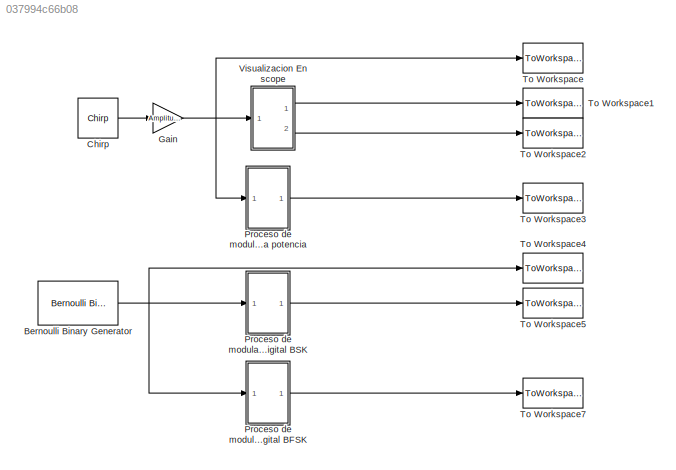
MODEL slx_037994c66b08
KIND model
CONFIG AbsTol = auto
CONFIG EnableMultiTasking = off
CONFIG FixedStep = Tsampling
CONFIG MaxStep = auto
CONFIG MinStep = auto
CONFIG RelTol = 1e-3
CONFIG SampleTimeConstraint = Unconstrained
CONFIG Solver = ode5
CONFIG SolverName = ode5
CONFIG StartTime = 0.0
CONFIG StopTime = 30-Tsampling
BLOCK [Reference] Bernoulli Binary Generator  REF=commrandsrc3/Bernoulli Binary
Generator
  Ports = [0, 1]
  SourceBlock = commrandsrc3/Bernoulli Binary\nGenerator
  SourceProductBaseCode = CM
  SourceProductName = Communications Toolbox
  SourceType = Bernoulli Binary Generator
BLOCK [Reference] Chirp  REF=dspsrcs4/Chirp
  Ports = [0, 1]
  SourceBlock = dspsrcs4/Chirp
  SourceProductBaseCode = DS
  SourceProductName = DSP System Toolbox
  SourceType = Chirp
BLOCK [Gain] Gain
  Gain = AmplitudSignal
  OutDataTypeStr = Inherit: Inherit via internal rule
  ParamDataTypeStr = Inherit: Inherit via internal rule
  SaturateOnIntegerOverflow = off
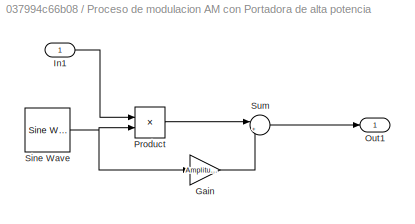
BLOCK [SubSystem] Proceso de modulacion AM con Portadora de alta potencia
  Ports = [1, 1]
  RequestExecContextInheritance = off
BLOCK [Gain] Proceso de modulacion AM con Portadora de alta potencia/Gain
  Gain = AmplitudPort
  OutDataTypeStr = Inherit: Inherit via internal rule
  ParamDataTypeStr = Inherit: Inherit via internal rule
  SaturateOnIntegerOverflow = off
BLOCK [Inport] Proceso de modulacion AM con Portadora de alta potencia/In1
  IconDisplay = Port number
BLOCK [Outport] Proceso de modulacion AM con Portadora de alta potencia/Out1
  IconDisplay = Port number
BLOCK [Product] Proceso de modulacion AM con Portadora de alta potencia/Product
  InputSameDT = off
  OutDataTypeStr = Inherit: Inherit via internal rule
  Ports = [2, 1]
  RndMeth = Floor
  SaturateOnIntegerOverflow = off
BLOCK [Reference] Proceso de modulacion AM con Portadora de alta potencia/Sine Wave  REF=dspsrcs4/Sine Wave
  Ports = [0, 1]
  SourceBlock = dspsrcs4/Sine Wave
  SourceProductBaseCode = DS
  SourceProductName = DSP System Toolbox
  SourceType = Sine Wave
BLOCK [Sum] Proceso de modulacion AM con Portadora de alta potencia/Sum
  IconShape = round
  InputSameDT = off
  Inputs = |++
  OutDataTypeStr = Inherit: Inherit via internal rule
  Ports = [2, 1]
  SaturateOnIntegerOverflow = off
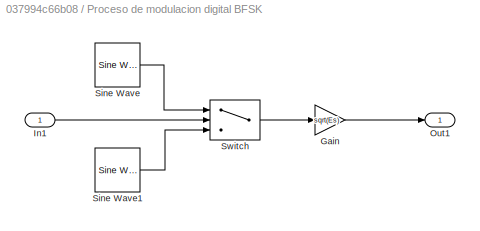
BLOCK [SubSystem] Proceso de modulacion digital BFSK
  Ports = [1, 1]
  RequestExecContextInheritance = off
BLOCK [Gain] Proceso de modulacion digital BFSK/Gain
  Gain = sqrt(Es)
  OutDataTypeStr = Inherit: Inherit via internal rule
  ParamDataTypeStr = Inherit: Inherit via internal rule
  SaturateOnIntegerOverflow = off
BLOCK [Inport] Proceso de modulacion digital BFSK/In1
  IconDisplay = Port number
BLOCK [Outport] Proceso de modulacion digital BFSK/Out1
  IconDisplay = Port number
BLOCK [Reference] Proceso de modulacion digital BFSK/Sine Wave  REF=dspsrcs4/Sine Wave
  Ports = [0, 1]
  SourceBlock = dspsrcs4/Sine Wave
  SourceProductBaseCode = DS
  SourceProductName = DSP System Toolbox
  SourceType = Sine Wave
BLOCK [Reference] Proceso de modulacion digital BFSK/Sine Wave1  REF=dspsrcs4/Sine Wave
  Ports = [0, 1]
  SourceBlock = dspsrcs4/Sine Wave
  SourceProductBaseCode = DS
  SourceProductName = DSP System Toolbox
  SourceType = Sine Wave
BLOCK [Switch] Proceso de modulacion digital BFSK/Switch
  Criteria = u2 > Threshold
  InputSameDT = off
  SaturateOnIntegerOverflow = off
  Threshold = 0.1
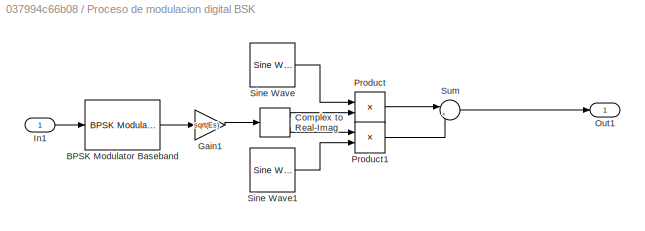
BLOCK [SubSystem] Proceso de modulacion digital BSK
  Ports = [1, 1]
  RequestExecContextInheritance = off
BLOCK [Reference] Proceso de modulacion digital BSK/BPSK Modulator Baseband  REF=commdigbbndpm3/BPSK
Modulator
Baseband
  Ports = [1, 1]
  SourceBlock = commdigbbndpm3/BPSK\nModulator\nBaseband
  SourceProductBaseCode = CM
  SourceProductName = Communications Toolbox
  SourceType = BPSK Modulator Baseband
BLOCK [ComplexToRealImag] Proceso de modulacion digital BSK/Complex to Real-Imag
  Ports = [1, 2]
BLOCK [Gain] Proceso de modulacion digital BSK/Gain1
  Gain = sqrt(Es)
  OutDataTypeStr = Inherit: Inherit via internal rule
  ParamDataTypeStr = Inherit: Inherit via internal rule
  SaturateOnIntegerOverflow = off
BLOCK [Inport] Proceso de modulacion digital BSK/In1
  IconDisplay = Port number
BLOCK [Outport] Proceso de modulacion digital BSK/Out1
  IconDisplay = Port number
BLOCK [Product] Proceso de modulacion digital BSK/Product
  InputSameDT = off
  OutDataTypeStr = Inherit: Inherit via internal rule
  Ports = [2, 1]
  RndMeth = Floor
  SaturateOnIntegerOverflow = off
BLOCK [Product] Proceso de modulacion digital BSK/Product1
  InputSameDT = off
  OutDataTypeStr = Inherit: Inherit via internal rule
  Ports = [2, 1]
  RndMeth = Floor
  SaturateOnIntegerOverflow = off
BLOCK [Reference] Proceso de modulacion digital BSK/Sine Wave  REF=dspsrcs4/Sine Wave
  Ports = [0, 1]
  SourceBlock = dspsrcs4/Sine Wave
  SourceProductBaseCode = DS
  SourceProductName = DSP System Toolbox
  SourceType = Sine Wave
BLOCK [Reference] Proceso de modulacion digital BSK/Sine Wave1  REF=dspsrcs4/Sine Wave
  Ports = [0, 1]
  SourceBlock = dspsrcs4/Sine Wave
  SourceProductBaseCode = DS
  SourceProductName = DSP System Toolbox
  SourceType = Sine Wave
BLOCK [Sum] Proceso de modulacion digital BSK/Sum
  IconShape = round
  InputSameDT = off
  Inputs = |+-
  OutDataTypeStr = Inherit: Inherit via internal rule
  Ports = [2, 1]
  SaturateOnIntegerOverflow = off
BLOCK [ToWorkspace] To Workspace
  FixptAsFi = on
  MaxDataPoints = inf
  Ports = [1]
  SampleTime = Tsampling
  Save2DSignal = 2-D array (concatenate along first dimension)
  VariableName = signal_BB
BLOCK [ToWorkspace] To Workspace1
  FixptAsFi = on
  MaxDataPoints = inf
  Ports = [1]
  SampleTime = Tsampling
  Save2DSignal = 2-D array (concatenate along first dimension)
  VariableName = Envolvente_1
BLOCK [ToWorkspace] To Workspace2
  FixptAsFi = on
  MaxDataPoints = inf
  Ports = [1]
  SampleTime = Tsampling
  Save2DSignal = 2-D array (concatenate along first dimension)
  VariableName = Envolvente_2
BLOCK [ToWorkspace] To Workspace3
  FixptAsFi = on
  MaxDataPoints = inf
  Ports = [1]
  SampleTime = Tsampling
  Save2DSignal = 2-D array (concatenate along first dimension)
  VariableName = Signal_Mod_AM
BLOCK [ToWorkspace] To Workspace4
  FixptAsFi = on
  MaxDataPoints = inf
  Ports = [1]
  SampleTime = Tsampling
  Save2DSignal = 2-D array (concatenate along first dimension)
  VariableName = Signal_Inf
BLOCK [ToWorkspace] To Workspace5
  FixptAsFi = on
  MaxDataPoints = inf
  Ports = [1]
  SampleTime = Tsampling
  Save2DSignal = 2-D array (concatenate along first dimension)
  VariableName = Signal_Mod_BPSK
BLOCK [ToWorkspace] To Workspace7
  FixptAsFi = on
  MaxDataPoints = inf
  Ports = [1]
  SampleTime = Tsampling
  Save2DSignal = 2-D array (concatenate along first dimension)
  VariableName = Signal_Mod_BFSK
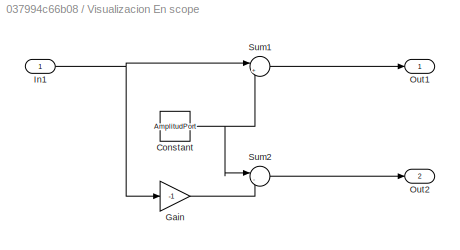
BLOCK [SubSystem] Visualizacion En scope
  Ports = [1, 2]
  RequestExecContextInheritance = off
BLOCK [Constant] Visualizacion En scope/Constant
  Value = AmplitudPort
BLOCK [Gain] Visualizacion En scope/Gain
  Gain = -1
  OutDataTypeStr = Inherit: Inherit via internal rule
  ParamDataTypeStr = Inherit: Inherit via internal rule
  SaturateOnIntegerOverflow = off
BLOCK [Inport] Visualizacion En scope/In1
  IconDisplay = Port number
BLOCK [Outport] Visualizacion En scope/Out1
  IconDisplay = Port number
BLOCK [Outport] Visualizacion En scope/Out2
  IconDisplay = Port number
  Port = 2
BLOCK [Sum] Visualizacion En scope/Sum1
  IconShape = round
  InputSameDT = off
  Inputs = |++
  OutDataTypeStr = Inherit: Inherit via internal rule
  Ports = [2, 1]
  SaturateOnIntegerOverflow = off
BLOCK [Sum] Visualizacion En scope/Sum2
  IconShape = round
  InputSameDT = off
  Inputs = |-+
  OutDataTypeStr = Inherit: Inherit via internal rule
  Ports = [2, 1]
  SaturateOnIntegerOverflow = off
NET Bernoulli Binary Generator:1 -> Proceso de modulacion digital BFSK:1, Proceso de modulacion digital BSK:1, To Workspace4:1
LINE Chirp:1 -> Gain:1
NET Gain:1 -> Proceso de modulacion AM con Portadora de alta potencia:1, To Workspace:1, Visualizacion En scope:1
LINE Proceso de modulacion AM con Portadora de alta potencia/Gain:1 -> Proceso de modulacion AM con Portadora de alta potencia/Sum:2
LINE Proceso de modulacion AM con Portadora de alta potencia/In1:1 -> Proceso de modulacion AM con Portadora de alta potencia/Product:1
LINE Proceso de modulacion AM con Portadora de alta potencia/Product:1 -> Proceso de modulacion AM con Portadora de alta potencia/Sum:1
NET Proceso de modulacion AM con Portadora de alta potencia/Sine Wave:1 -> Proceso de modulacion AM con Portadora de alta potencia/Gain:1, Proceso de modulacion AM con Portadora de alta potencia/Product:2
LINE Proceso de modulacion AM con Portadora de alta potencia/Sum:1 -> Proceso de modulacion AM con Portadora de alta potencia/Out1:1
LINE Proceso de modulacion AM con Portadora de alta potencia:1 -> To Workspace3:1
LINE Proceso de modulacion digital BFSK/Gain:1 -> Proceso de modulacion digital BFSK/Out1:1
LINE Proceso de modulacion digital BFSK/In1:1 -> Proceso de modulacion digital BFSK/Switch:2
LINE Proceso de modulacion digital BFSK/Sine Wave1:1 -> Proceso de modulacion digital BFSK/Switch:3
LINE Proceso de modulacion digital BFSK/Sine Wave:1 -> Proceso de modulacion digital BFSK/Switch:1
LINE Proceso de modulacion digital BFSK/Switch:1 -> Proceso de modulacion digital BFSK/Gain:1
LINE Proceso de modulacion digital BFSK:1 -> To Workspace7:1
LINE Proceso de modulacion digital BSK/BPSK Modulator Baseband:1 -> Proceso de modulacion digital BSK/Gain1:1
LINE Proceso de modulacion digital BSK/Complex to Real-Imag:1 -> Proceso de modulacion digital BSK/Product:2
LINE Proceso de modulacion digital BSK/Complex to Real-Imag:2 -> Proceso de modulacion digital BSK/Product1:1
LINE Proceso de modulacion digital BSK/Gain1:1 -> Proceso de modulacion digital BSK/Complex to Real-Imag:1
LINE Proceso de modulacion digital BSK/In1:1 -> Proceso de modulacion digital BSK/BPSK Modulator Baseband:1
LINE Proceso de modulacion digital BSK/Product1:1 -> Proceso de modulacion digital BSK/Sum:2
LINE Proceso de modulacion digital BSK/Product:1 -> Proceso de modulacion digital BSK/Sum:1
LINE Proceso de modulacion digital BSK/Sine Wave1:1 -> Proceso de modulacion digital BSK/Product1:2
LINE Proceso de modulacion digital BSK/Sine Wave:1 -> Proceso de modulacion digital BSK/Product:1
LINE Proceso de modulacion digital BSK/Sum:1 -> Proceso de modulacion digital BSK/Out1:1
LINE Proceso de modulacion digital BSK:1 -> To Workspace5:1
NET Visualizacion En scope/Constant:1 -> Visualizacion En scope/Sum1:2, Visualizacion En scope/Sum2:1
LINE Visualizacion En scope/Gain:1 -> Visualizacion En scope/Sum2:2
NET Visualizacion En scope/In1:1 -> Visualizacion En scope/Gain:1, Visualizacion En scope/Sum1:1
LINE Visualizacion En scope/Sum1:1 -> Visualizacion En scope/Out1:1
LINE Visualizacion En scope/Sum2:1 -> Visualizacion En scope/Out2:1
LINE Visualizacion En scope:1 -> To Workspace1:1
LINE Visualizacion En scope:2 -> To Workspace2:1
note: NET lines group one-source signal fan-out (src -> all destinations, sorted); 1:1 wires keep LINE
